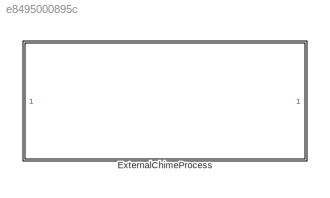
MODEL slx_e8495000895c
KIND library
CONFIG AbsTol = auto
CONFIG EnableMultiTasking = off
CONFIG FixedStep = auto
CONFIG MaxStep = auto
CONFIG MinStep = auto
CONFIG RelTol = 1e-3
CONFIG SampleTimeConstraint = Unconstrained
CONFIG SolverName = VariableStepAuto
CONFIG StartTime = 0.0
CONFIG StopTime = 10.0
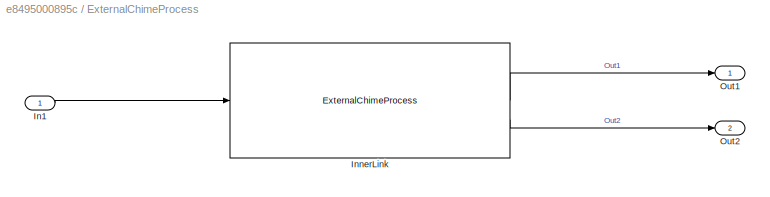
BLOCK [SubSystem] ExternalChimeProcess
BLOCK [Inport] ExternalChimeProcess/In1
BLOCK [Reference] ExternalChimeProcess/InnerLink  REF=ExternalChimeProcessBtc/ExternalChimeProcess
  SourceBlock = ExternalChimeProcessBtc/ExternalChimeProcess
  SourceProductName = Bose Blocklib
  SourceType = Chimes ExternalChimeProcess
BLOCK [Outport] ExternalChimeProcess/Out1
BLOCK [Outport] ExternalChimeProcess/Out2
  Port = 2
LINE ExternalChimeProcess/In1:1 -> ExternalChimeProcess/InnerLink:1
LINE ExternalChimeProcess/InnerLink:1 -> ExternalChimeProcess/Out1:1
LINE ExternalChimeProcess/InnerLink:2 -> ExternalChimeProcess/Out2:1
